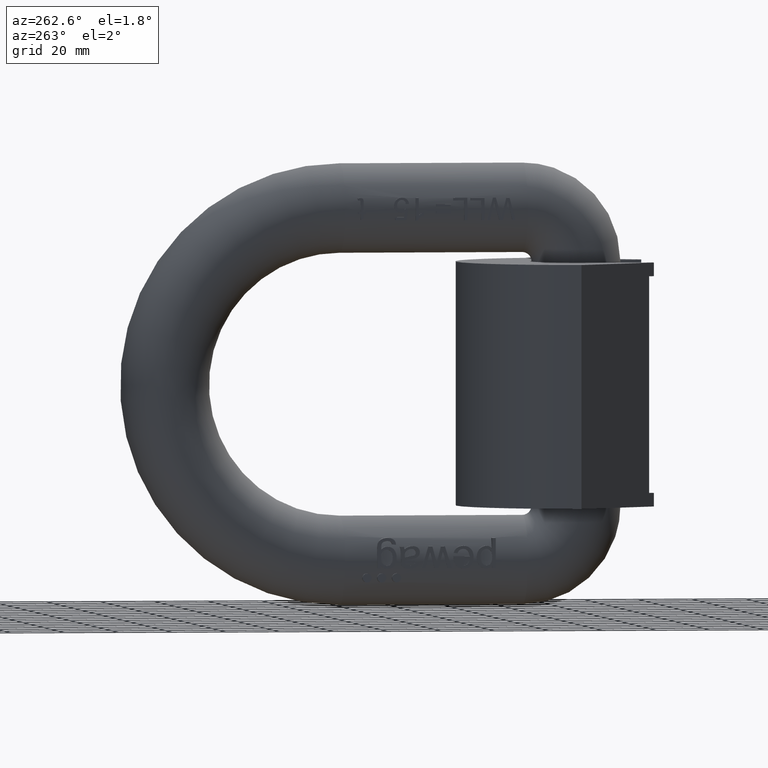
[diagram: clean part render]
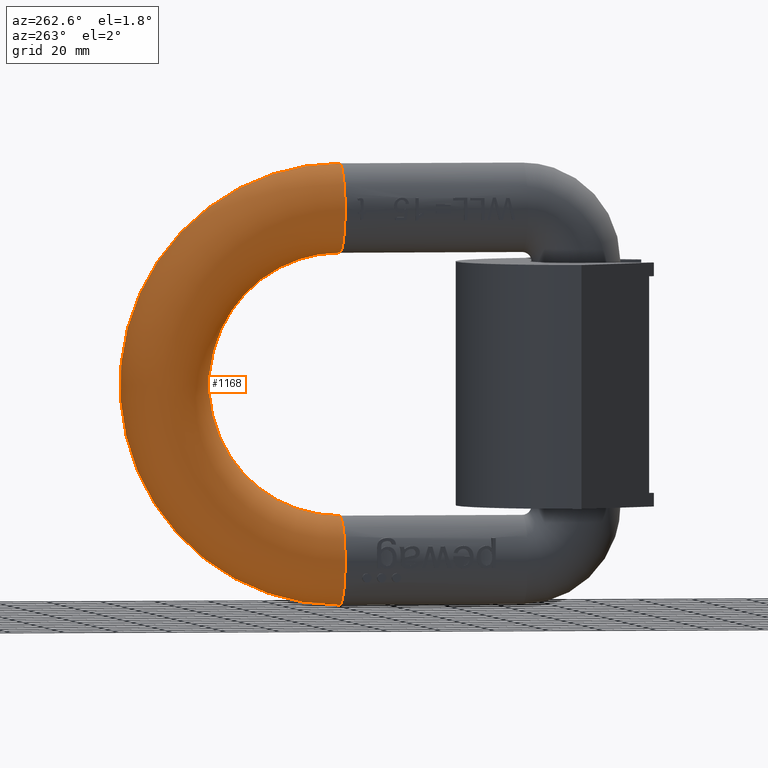
[diagram: same view with one face highlighted and labeled with its STEP entity id]
A machine part, auxiliary view. The second image highlights one B-rep face of the part: STEP entity #1168.
In plain terms, the highlighted toroidal blend (fillet) surface has major radius 65 mm and minor (blend) radius 16.5 mm.
Its self-contained STEP definition (entity closure, byte-faithful):
#176=TOROIDAL_SURFACE('',#7208,65.,16.5);
#885=FACE_BOUND('',#1968,.T.);
#886=FACE_BOUND('',#1969,.T.);
#1168=ADVANCED_FACE('',(#885,#886),#176,.T.);
#1968=EDGE_LOOP('',(#2796));
#1969=EDGE_LOOP('',(#2797));
#2346=CIRCLE('',#7105,16.5);
#2389=CIRCLE('',#7186,16.5);
#2796=ORIENTED_EDGE('',*,*,#5353,.T.);
#2797=ORIENTED_EDGE('',*,*,#5130,.F.);
#4440=VERTEX_POINT('',#8785);
#4663=VERTEX_POINT('',#10284);
#5130=EDGE_CURVE('',#4440,#4440,#2346,.T.);
#5353=EDGE_CURVE('',#4663,#4663,#2389,.T.);
#7105=AXIS2_PLACEMENT_3D('',#8784,#7515,#7516);
#7186=AXIS2_PLACEMENT_3D('',#10283,#7733,#7734);
#7208=AXIS2_PLACEMENT_3D('',#10965,#7787,#7788);
#7515=DIRECTION('',(0.,-1.,2.089831575765E-16));
#7516=DIRECTION('',(0.,0.,-1.));
#7733=DIRECTION('',(0.,1.,4.35437362083886E-15));
#7734=DIRECTION('',(0.,-4.20539024479226E-15,1.));
#7787=DIRECTION('',(1.,0.,0.));
#7788=DIRECTION('',(0.,0.,-1.));
#8784=CARTESIAN_POINT('',(0.,114.5,-65.));
#8785=CARTESIAN_POINT('',(0.,114.5,-81.5));
#10283=CARTESIAN_POINT('',(0.,114.5,65.));
#10284=CARTESIAN_POINT('',(0.,114.5,81.5));
#10965=CARTESIAN_POINT('',(0.,114.5,0.));